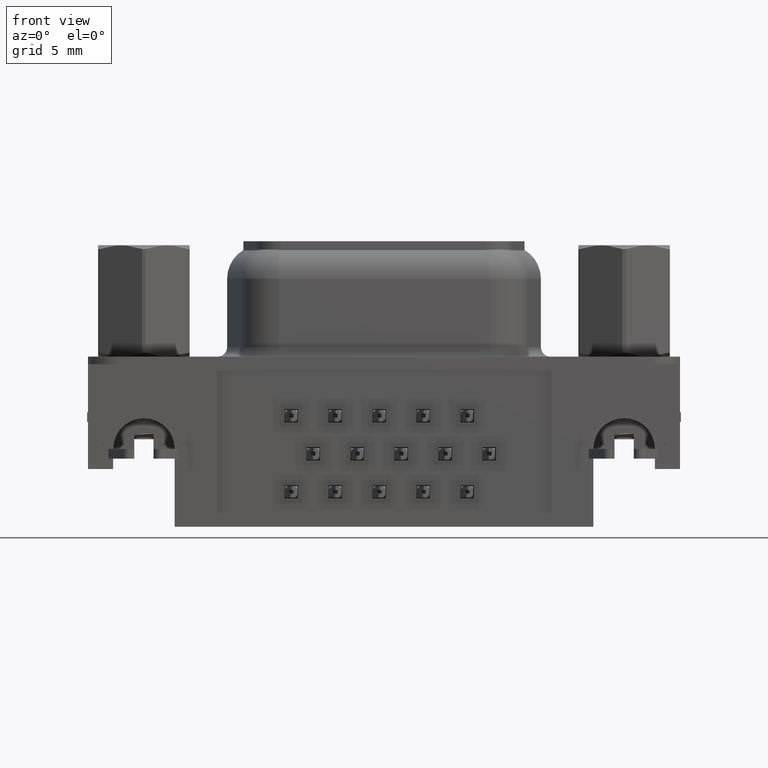
[diagram: clean part render]
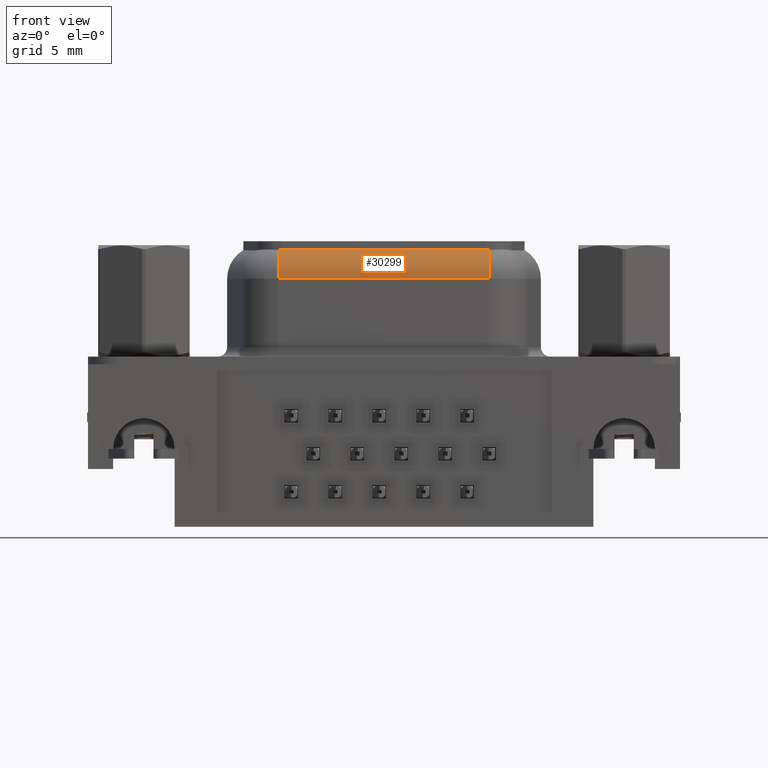
[diagram: same view with one face highlighted and labeled with its STEP entity id]
A machine part, front view. The second image highlights one B-rep face of the part: STEP entity #30299.
In plain terms, the highlighted cylindrical surface (edge-blend (fillet) strip) has radius 1.75 mm, axis along (1, -0, 0).
Its self-contained STEP definition (entity closure, byte-faithful):
#1126 = AXIS2_PLACEMENT_3D ( 'NONE', #21544, #3915, #19139 ) ;
#1624 = CARTESIAN_POINT ( 'NONE',  ( 17.92936971058446000, -3.097916009492188000, 5.952088550095600000 ) ) ;
#1817 = CIRCLE ( 'NONE', #12134, 1.749999999999999800 ) ;
#2550 = CARTESIAN_POINT ( 'NONE',  ( 17.97232477523701300, -3.093777408744928800, 5.954547089199009800 ) ) ;
#3025 = ORIENTED_EDGE ( 'NONE', *, *, #18591, .T. ) ;
#3107 = VERTEX_POINT ( 'NONE', #8913 ) ;
#3683 = EDGE_CURVE ( 'NONE', #15896, #17815, #1817, .T. ) ;
#3915 = DIRECTION ( 'NONE',  ( 1.000000000000000000, -1.583549951081495900E-016, 0.0000000000000000000 ) ) ;
#4169 = CARTESIAN_POINT ( 'NONE',  ( 17.88607951932923600, -3.100000000000001000, 5.950833101980364000 ) ) ;
#4963 = EDGE_CURVE ( 'NONE', #8624, #18625, #21984, .T. ) ;
#6255 = CARTESIAN_POINT ( 'NONE',  ( 17.97232477523701300, -3.950000000000002800, 4.450000000000000200 ) ) ;
#7001 = DIRECTION ( 'NONE',  ( 0.0000000000000000000, 0.0000000000000000000, 1.000000000000000000 ) ) ;
#7123 = DIRECTION ( 'NONE',  ( -1.000000000000000000, 0.0000000000000000000, 0.0000000000000000000 ) ) ;
#7337 = CARTESIAN_POINT ( 'NONE',  ( 7.017675224762986600, -2.200000000000001500, 4.450000000000000200 ) ) ;
#7830 = B_SPLINE_CURVE_WITH_KNOTS ( 'NONE', 3,
 ( #28371, #10493, #30940, #15607 ),
 .UNSPECIFIED., .F., .F.,
 ( 4, 4 ),
 ( 0.0000000000000000000, 0.0001296718554265193700 ),
 .UNSPECIFIED. ) ;
#8624 = VERTEX_POINT ( 'NONE', #23724 ) ;
#8913 = CARTESIAN_POINT ( 'NONE',  ( 7.147144432479601400, -3.100000000000001900, 5.950833101980364000 ) ) ;
#9317 = VECTOR ( 'NONE', #12624, 1000.000000000000000 ) ;
#9368 = ORIENTED_EDGE ( 'NONE', *, *, #26685, .F. ) ;
#9442 = DIRECTION ( 'NONE',  ( 0.0000000000000000000, 0.0000000000000000000, -1.000000000000000000 ) ) ;
#9802 = CARTESIAN_POINT ( 'NONE',  ( 17.97232477523701300, -3.100000000000001000, 5.950833101980364000 ) ) ;
#10055 = CARTESIAN_POINT ( 'NONE',  ( 17.97232477523701300, -3.950000000000002800, 4.450000000000000200 ) ) ;
#10493 = CARTESIAN_POINT ( 'NONE',  ( 7.103920480670762300, -3.100000000000001900, 5.950833101980363100 ) ) ;
#10538 = ORIENTED_EDGE ( 'NONE', *, *, #4963, .F. ) ;
#12134 = AXIS2_PLACEMENT_3D ( 'NONE', #15798, #16586, #9442 ) ;
#12624 = DIRECTION ( 'NONE',  ( -1.000000000000000000, 1.583549951081495900E-016, -0.0000000000000000000 ) ) ;
#13018 = ORIENTED_EDGE ( 'NONE', *, *, #3683, .F. ) ;
#13997 = FACE_OUTER_BOUND ( 'NONE', #26780, .T. ) ;
#14535 = EDGE_CURVE ( 'NONE', #15896, #23451, #28253, .T. ) ;
#14919 = DIRECTION ( 'NONE',  ( -1.000000000000000000, 1.583549951081495900E-016, -0.0000000000000000000 ) ) ;
#15607 = CARTESIAN_POINT ( 'NONE',  ( 7.017675224762986600, -3.093777408744929700, 5.954547089199006200 ) ) ;
#15798 = CARTESIAN_POINT ( 'NONE',  ( 17.97232477523701300, -2.200000000000003300, 4.450000000000000200 ) ) ;
#15896 = VERTEX_POINT ( 'NONE', #2550 ) ;
#16586 = DIRECTION ( 'NONE',  ( 1.000000000000000000, 0.0000000000000000000, -0.0000000000000000000 ) ) ;
#17763 = LINE ( 'NONE', #9802, #30573 ) ;
#17815 = VERTEX_POINT ( 'NONE', #6255 ) ;
#18591 = EDGE_CURVE ( 'NONE', #3107, #18625, #7830, .T. ) ;
#18625 = VERTEX_POINT ( 'NONE', #25832 ) ;
#19139 = DIRECTION ( 'NONE',  ( 0.0000000000000000000, 1.000000000000000000, 0.0000000000000000000 ) ) ;
#19342 = CARTESIAN_POINT ( 'NONE',  ( 17.84285556752039500, -3.100000000000001000, 5.950833101980364000 ) ) ;
#19391 = CARTESIAN_POINT ( 'NONE',  ( 17.97232477523701300, -3.093777408744928800, 5.954547089199009800 ) ) ;
#21544 = CARTESIAN_POINT ( 'NONE',  ( 17.97232477523701300, -2.200000000000003300, 4.450000000000000200 ) ) ;
#21908 = CARTESIAN_POINT ( 'NONE',  ( 17.84285556752039500, -3.100000000000001000, 5.950833101980364000 ) ) ;
#21984 = CIRCLE ( 'NONE', #31293, 1.749999999999999800 ) ;
#22817 = LINE ( 'NONE', #10055, #9317 ) ;
#23451 = VERTEX_POINT ( 'NONE', #19342 ) ;
#23724 = CARTESIAN_POINT ( 'NONE',  ( 7.017675224762986600, -3.950000000000001100, 4.450000000000000200 ) ) ;
#25403 = EDGE_CURVE ( 'NONE', #23451, #3107, #17763, .T. ) ;
#25832 = CARTESIAN_POINT ( 'NONE',  ( 7.017675224762986600, -3.093777408744929700, 5.954547089199006200 ) ) ;
#25928 = CYLINDRICAL_SURFACE ( 'NONE', #1126, 1.750000000000000000 ) ;
#26685 = EDGE_CURVE ( 'NONE', #17815, #8624, #22817, .T. ) ;
#26780 = EDGE_LOOP ( 'NONE', ( #13018, #28356, #30363, #3025, #10538, #9368 ) ) ;
#28253 = B_SPLINE_CURVE_WITH_KNOTS ( 'NONE', 3,
 ( #19391, #1624, #4169, #21908 ),
 .UNSPECIFIED., .F., .F.,
 ( 4, 4 ),
 ( 0.0000000000000000000, 0.0001296718554265185100 ),
 .UNSPECIFIED. ) ;
#28356 = ORIENTED_EDGE ( 'NONE', *, *, #14535, .T. ) ;
#28371 = CARTESIAN_POINT ( 'NONE',  ( 7.147144432479601400, -3.100000000000001900, 5.950833101980364000 ) ) ;
#30299 = ADVANCED_FACE ( 'NONE', ( #13997 ), #25928, .T. ) ;
#30363 = ORIENTED_EDGE ( 'NONE', *, *, #25403, .T. ) ;
#30573 = VECTOR ( 'NONE', #14919, 1000.000000000000000 ) ;
#30940 = CARTESIAN_POINT ( 'NONE',  ( 7.060630289415535700, -3.097916009492188500, 5.952088550095598200 ) ) ;
#31293 = AXIS2_PLACEMENT_3D ( 'NONE', #7337, #7123, #7001 ) ;